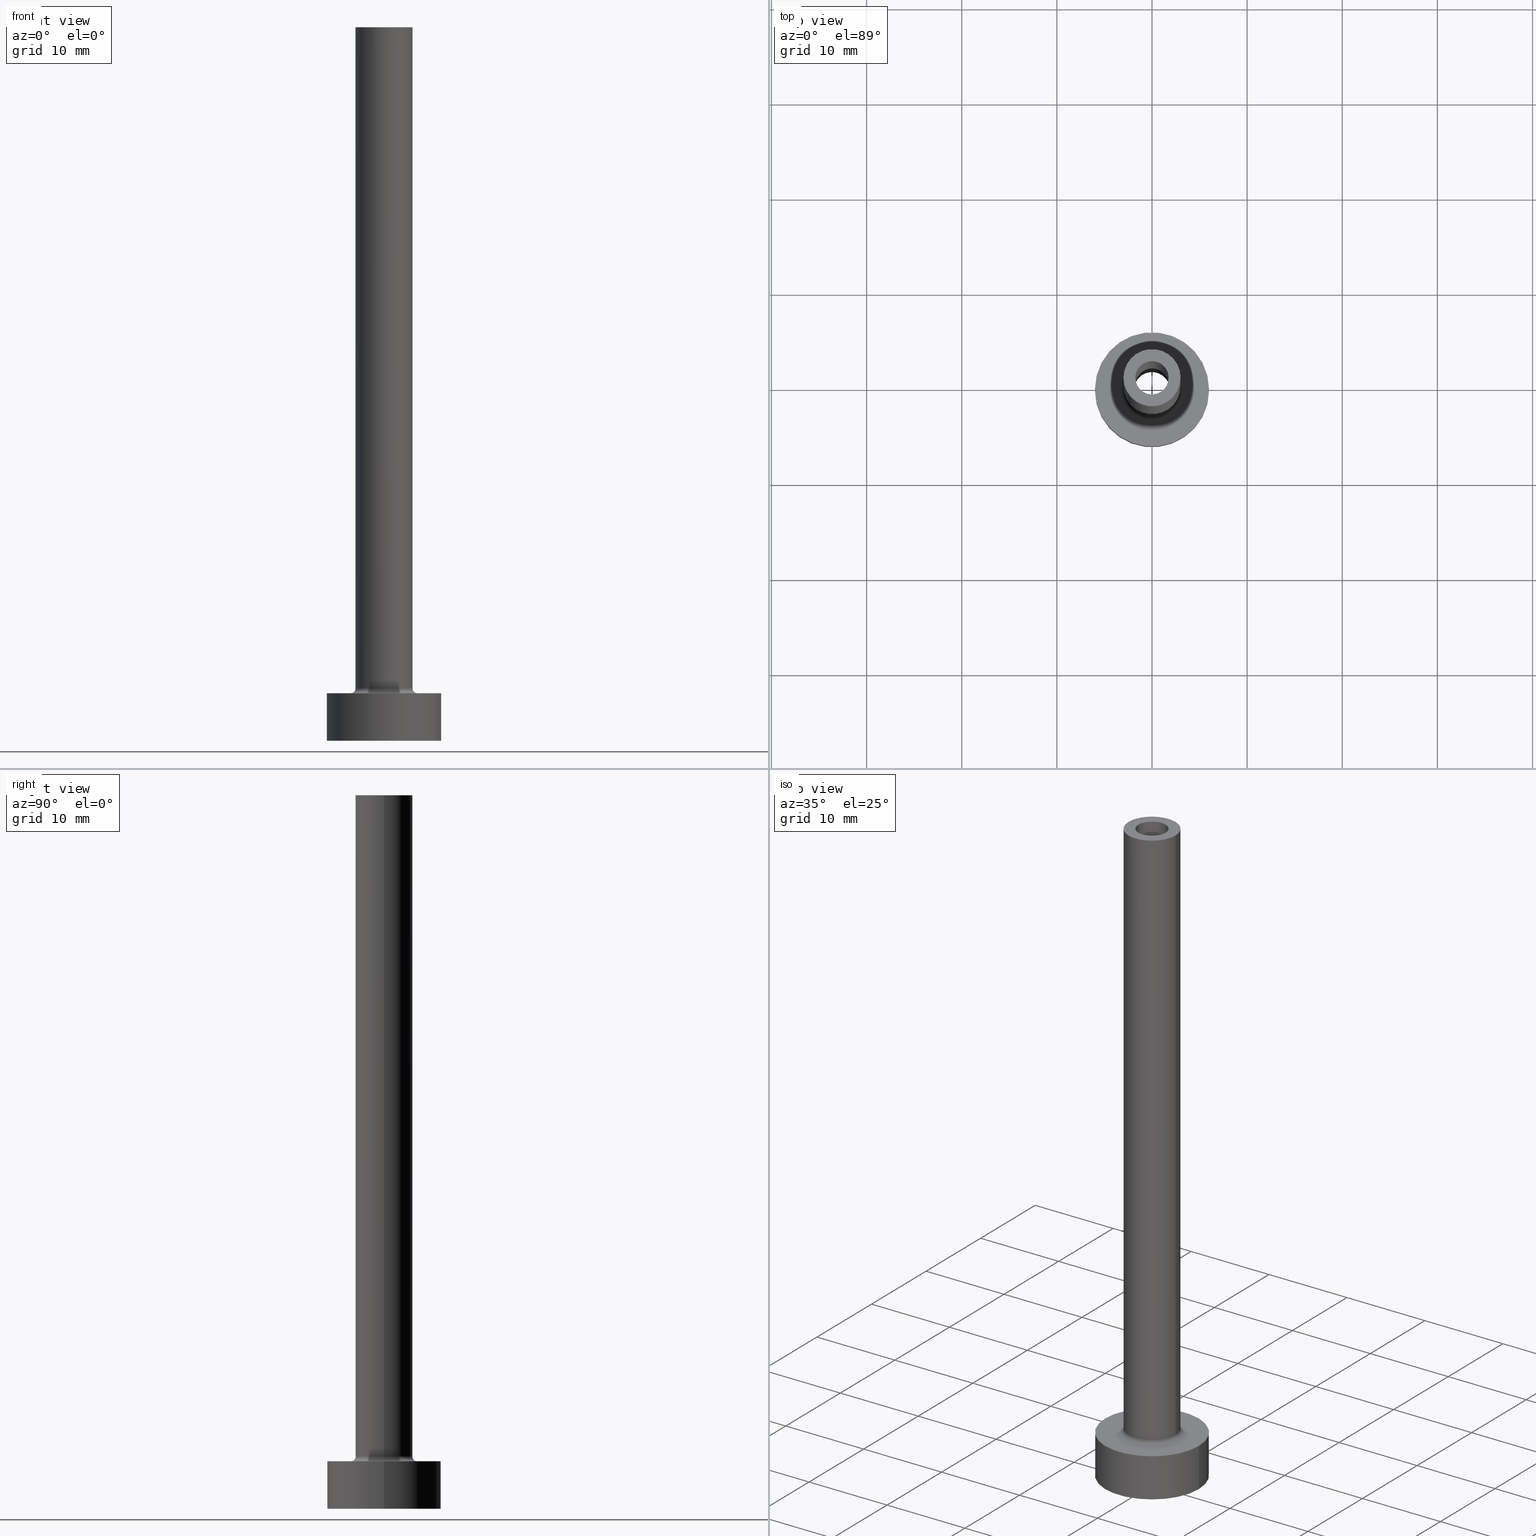
[diagram: canonical four-view strip — front | top / right | iso, engineering-drawing reading convention]
A machine part, canonical four-view strip (front | top / right | iso — engineering-drawing reading convention). The complete STEP part file that produces these views, byte-faithful:
ISO-10303-21;
HEADER;
FILE_DESCRIPTION (( 'STEP AP203' ),
    '1' );
FILE_NAME ('6c5e.STEP',
    '2023-02-13T17:52:37',
    ( '' ),
    ( '' ),
    'SwSTEP 2.0',
    'SolidWorks 2019',
    '' );
FILE_SCHEMA (( 'CONFIG_CONTROL_DESIGN' ));
ENDSEC;

DATA;
#1 = ADVANCED_FACE ( 'NONE', ( #37 ), #139, .F. ) ;
#2 = SECURITY_CLASSIFICATION ( '', '', #143 ) ;
#3 = LOCAL_TIME ( 18, 52, 37.00000000000000000, #80 ) ;
#4 = ORIENTED_EDGE ( 'NONE', *, *, #181, .F. ) ;
#5 = ORIENTED_EDGE ( 'NONE', *, *, #169, .F. ) ;
#6 = PRODUCT_DEFINITION_SHAPE ( 'NONE', 'NONE',  #79 ) ;
#7 = APPROVAL_ROLE ( '' ) ;
#8 = VECTOR ( 'NONE', #162, 1000.000000000000000 ) ;
#9 = PLANE ( 'NONE',  #408 ) ;
#10 = CIRCLE ( 'NONE', #326, 1.899999999999999911 ) ;
#11 = ORIENTED_EDGE ( 'NONE', *, *, #351, .T. ) ;
#12 = CC_DESIGN_PERSON_AND_ORGANIZATION_ASSIGNMENT ( #315, #214, ( #79 ) ) ;
#13 = LINE ( 'NONE', #39, #208 ) ;
#14 = VERTEX_POINT ( 'NONE', #420 ) ;
#15 = FACE_OUTER_BOUND ( 'NONE', #152, .T. ) ;
#16 = DIRECTION ( 'NONE',  ( -0.000000000000000000, -0.000000000000000000, -1.000000000000000000 ) ) ;
#17 = ADVANCED_FACE ( 'NONE', ( #424 ), #142, .F. ) ;
#18 = CC_DESIGN_APPROVAL ( #457, ( #79 ) ) ;
#19 = ORIENTED_EDGE ( 'NONE', *, *, #309, .T. ) ;
#20 = DATE_AND_TIME ( #47, #3 ) ;
#21 = FACE_OUTER_BOUND ( 'NONE', #421, .T. ) ;
#22 = CYLINDRICAL_SURFACE ( 'NONE', #172, 6.000000000000000888 ) ;
#23 = DIRECTION ( 'NONE',  ( 1.000000000000000000, 0.000000000000000000, -0.000000000000000000 ) ) ;
#24 = CIRCLE ( 'NONE', #383, 3.000000000000000444 ) ;
#25 = CIRCLE ( 'NONE', #284, 6.000000000000000888 ) ;
#26 = ORIENTED_EDGE ( 'NONE', *, *, #144, .T. ) ;
#27 = DIRECTION ( 'NONE',  ( 1.000000000000000000, 0.000000000000000000, 0.000000000000000000 ) ) ;
#28 = AXIS2_PLACEMENT_3D ( 'NONE', #170, #96, #174 ) ;
#29 = CARTESIAN_POINT ( 'NONE',  ( -1.899999999999999911, 0.000000000000000000, 30.00000000000001421 ) ) ;
#30 = CARTESIAN_POINT ( 'NONE',  ( 0.000000000000000000, 0.000000000000000000, 5.000000000000000000 ) ) ;
#31 = ORIENTED_EDGE ( 'NONE', *, *, #425, .F. ) ;
#32 = AXIS2_PLACEMENT_3D ( 'NONE', #294, #363, #332 ) ;
#33 = EDGE_CURVE ( 'NONE', #136, #259, #25, .T. ) ;
#34 = CIRCLE ( 'NONE', #293, 3.000000000000000444 ) ;
#35 = AXIS2_PLACEMENT_3D ( 'NONE', #390, #382, #379 ) ;
#36 = DIRECTION ( 'NONE',  ( 0.000000000000000000, 0.000000000000000000, -1.000000000000000000 ) ) ;
#37 = FACE_OUTER_BOUND ( 'NONE', #217, .T. ) ;
#38 = CALENDAR_DATE ( 2023, 13, 2 ) ;
#39 = CARTESIAN_POINT ( 'NONE',  ( -6.000000000000000888, 0.000000000000000000, 5.000000000000000000 ) ) ;
#40 = EDGE_CURVE ( 'NONE', #222, #290, #380, .T. ) ;
#41 = DATE_AND_TIME ( #429, #233 ) ;
#42 = ORIENTED_EDGE ( 'NONE', *, *, #173, .F. ) ;
#43 = CIRCLE ( 'NONE', #77, 1.899999999999999911 ) ;
#44 = CIRCLE ( 'NONE', #403, 3.000000000000000444 ) ;
#45 = COORDINATED_UNIVERSAL_TIME_OFFSET ( 1, 0, .AHEAD. ) ;
#46 = ORIENTED_EDGE ( 'NONE', *, *, #313, .T. ) ;
#47 = CALENDAR_DATE ( 2023, 13, 2 ) ;
#48 = CARTESIAN_POINT ( 'NONE',  ( 0.000000000000000000, 0.000000000000000000, 30.00000000000001421 ) ) ;
#49 = DIRECTION ( 'NONE',  ( -1.000000000000000000, 0.000000000000000000, 0.000000000000000000 ) ) ;
#50 = DIRECTION ( 'NONE',  ( -0.000000000000000000, -0.000000000000000000, -1.000000000000000000 ) ) ;
#51 = ORIENTED_EDGE ( 'NONE', *, *, #94, .F. ) ;
#52 = EDGE_CURVE ( 'NONE', #290, #273, #339, .T. ) ;
#53 = CYLINDRICAL_SURFACE ( 'NONE', #279, 1.750000000000000000 ) ;
#54 = DIRECTION ( 'NONE',  ( 0.000000000000000000, 0.000000000000000000, -1.000000000000000000 ) ) ;
#55 = CIRCLE ( 'NONE', #449, 1.750000000000000000 ) ;
#56 =( GEOMETRIC_REPRESENTATION_CONTEXT ( 3 ) GLOBAL_UNCERTAINTY_ASSIGNED_CONTEXT ( ( #378 ) ) GLOBAL_UNIT_ASSIGNED_CONTEXT ( ( #178, #104, #176 ) ) REPRESENTATION_CONTEXT ( 'NONE', 'WORKASPACE' ) );
#57 = DIRECTION ( 'NONE',  ( 0.000000000000000000, 0.000000000000000000, 1.000000000000000000 ) ) ;
#58 = SHAPE_DEFINITION_REPRESENTATION ( #6, #241 ) ;
#59 = CARTESIAN_POINT ( 'NONE',  ( 3.000000000000000444, 3.673940397442060361E-16, 5.500000000000005329 ) ) ;
#60 = ADVANCED_FACE ( 'NONE', ( #324, #15 ), #9, .F. ) ;
#61 = DIRECTION ( 'NONE',  ( 1.000000000000000000, 0.000000000000000000, 0.000000000000000000 ) ) ;
#62 = AXIS2_PLACEMENT_3D ( 'NONE', #427, #81, #248 ) ;
#63 = APPROVAL_PERSON_ORGANIZATION ( #260, #457, #7 ) ;
#64 = CARTESIAN_POINT ( 'NONE',  ( 0.000000000000000000, 0.000000000000000000, 0.000000000000000000 ) ) ;
#65 = DIRECTION ( 'NONE',  ( -1.000000000000000000, 0.000000000000000000, 0.000000000000000000 ) ) ;
#66 = EDGE_CURVE ( 'NONE', #230, #136, #90, .T. ) ;
#67 = ORIENTED_EDGE ( 'NONE', *, *, #71, .T. ) ;
#68 = ORIENTED_EDGE ( 'NONE', *, *, #52, .F. ) ;
#69 = CARTESIAN_POINT ( 'NONE',  ( 0.000000000000000000, 0.000000000000000000, 5.500000000000005329 ) ) ;
#70 = AXIS2_PLACEMENT_3D ( 'NONE', #413, #91, #417 ) ;
#71 = EDGE_CURVE ( 'NONE', #222, #14, #24, .T. ) ;
#72 = CARTESIAN_POINT ( 'NONE',  ( 0.000000000000000000, 0.000000000000000000, 75.00000000000001421 ) ) ;
#73 = PERSON_AND_ORGANIZATION ( #180, #311 ) ;
#74 = DATE_AND_TIME ( #388, #262 ) ;
#75 = COORDINATED_UNIVERSAL_TIME_OFFSET ( 1, 0, .AHEAD. ) ;
#76 = PRODUCT ( '6c5e', '6c5e', '', ( #423 ) ) ;
#77 = AXIS2_PLACEMENT_3D ( 'NONE', #203, #304, #27 ) ;
#78 = ORIENTED_EDGE ( 'NONE', *, *, #302, .F. ) ;
#79 = PRODUCT_DEFINITION ( 'NEZN�M�', '', #209, #212 ) ;
#80 = COORDINATED_UNIVERSAL_TIME_OFFSET ( 1, 0, .AHEAD. ) ;
#81 = DIRECTION ( 'NONE',  ( -0.000000000000000000, -0.000000000000000000, -1.000000000000000000 ) ) ;
#82 = VERTEX_POINT ( 'NONE', #109 ) ;
#83 = DIRECTION ( 'NONE',  ( 0.000000000000000000, 0.000000000000000000, 1.000000000000000000 ) ) ;
#84 = ORIENTED_EDGE ( 'NONE', *, *, #236, .F. ) ;
#85 = VECTOR ( 'NONE', #384, 1000.000000000000000 ) ;
#86 = CYLINDRICAL_SURFACE ( 'NONE', #341, 6.000000000000000888 ) ;
#87 = ADVANCED_FACE ( 'NONE', ( #145 ), #391, .F. ) ;
#88 = TOROIDAL_SURFACE ( 'NONE', #343, 3.500000000000000444, 0.5000000000000000000 ) ;
#89 = ORIENTED_EDGE ( 'NONE', *, *, #285, .F. ) ;
#90 = LINE ( 'NONE', #190, #8 ) ;
#91 = DIRECTION ( 'NONE',  ( 0.000000000000000000, 0.000000000000000000, 1.000000000000000000 ) ) ;
#92 = DIRECTION ( 'NONE',  ( 0.000000000000000000, 0.000000000000000000, 1.000000000000000000 ) ) ;
#93 = CARTESIAN_POINT ( 'NONE',  ( 6.000000000000000888, 7.347880794884120722E-16, 5.000000000000000000 ) ) ;
#94 = EDGE_CURVE ( 'NONE', #147, #407, #283, .T. ) ;
#95 = ORIENTED_EDGE ( 'NONE', *, *, #138, .T. ) ;
#96 = DIRECTION ( 'NONE',  ( -0.000000000000000000, -0.000000000000000000, -1.000000000000000000 ) ) ;
#97 = DIRECTION ( 'NONE',  ( -1.000000000000000000, 0.000000000000000000, 0.000000000000000000 ) ) ;
#98 = CYLINDRICAL_SURFACE ( 'NONE', #333, 1.899999999999999911 ) ;
#99 = ORIENTED_EDGE ( 'NONE', *, *, #329, .F. ) ;
#100 = EDGE_CURVE ( 'NONE', #259, #136, #163, .T. ) ;
#101 = AXIS2_PLACEMENT_3D ( 'NONE', #269, #266, #274 ) ;
#102 = DIRECTION ( 'NONE',  ( 0.000000000000000000, 0.000000000000000000, 1.000000000000000000 ) ) ;
#103 = AXIS2_PLACEMENT_3D ( 'NONE', #215, #295, #257 ) ;
#104 =( NAMED_UNIT ( * ) PLANE_ANGLE_UNIT ( ) SI_UNIT ( $, .RADIAN. ) );
#105 = CLOSED_SHELL ( 'NONE', ( #114, #1, #336, #158, #192, #409, #205, #243, #275, #151, #87, #344, #60, #17 ) ) ;
#106 = ORIENTED_EDGE ( 'NONE', *, *, #52, .T. ) ;
#107 = PERSON_AND_ORGANIZATION ( #180, #311 ) ;
#108 = LINE ( 'NONE', #317, #165 ) ;
#109 = CARTESIAN_POINT ( 'NONE',  ( 3.500000000000000444, 0.000000000000000000, 5.000000000000002665 ) ) ;
#110 = APPROVAL_STATUS ( 'not_yet_approved' ) ;
#111 = ORIENTED_EDGE ( 'NONE', *, *, #360, .F. ) ;
#112 = EDGE_LOOP ( 'NONE', ( #46, #335 ) ) ;
#113 = ORIENTED_EDGE ( 'NONE', *, *, #33, .T. ) ;
#114 = ADVANCED_FACE ( 'NONE', ( #402 ), #53, .F. ) ;
#115 = CIRCLE ( 'NONE', #125, 1.899999999999999911 ) ;
#116 = APPROVAL_PERSON_ORGANIZATION ( #146, #369, #287 ) ;
#117 = ORIENTED_EDGE ( 'NONE', *, *, #442, .F. ) ;
#118 = CARTESIAN_POINT ( 'NONE',  ( 0.000000000000000000, 0.000000000000000000, 0.000000000000000000 ) ) ;
#119 = CARTESIAN_POINT ( 'NONE',  ( 1.899999999999999911, 2.326828918379971365E-16, 0.000000000000000000 ) ) ;
#120 = CC_DESIGN_PERSON_AND_ORGANIZATION_ASSIGNMENT ( #107, #389, ( #2 ) ) ;
#121 = EDGE_LOOP ( 'NONE', ( #51, #89 ) ) ;
#122 = VERTEX_POINT ( 'NONE', #194 ) ;
#123 = APPLICATION_PROTOCOL_DEFINITION ( 'international standard', 'config_control_design', 1994, #280 ) ;
#124 = DIRECTION ( 'NONE',  ( 0.000000000000000000, 0.000000000000000000, -1.000000000000000000 ) ) ;
#125 = AXIS2_PLACEMENT_3D ( 'NONE', #362, #83, #328 ) ;
#126 = CARTESIAN_POINT ( 'NONE',  ( 0.000000000000000000, 0.000000000000000000, 5.000000000000000000 ) ) ;
#127 = CYLINDRICAL_SURFACE ( 'NONE', #101, 3.000000000000000444 ) ;
#128 = DIRECTION ( 'NONE',  ( 1.000000000000000000, 0.000000000000000000, 0.000000000000000000 ) ) ;
#129 = ORIENTED_EDGE ( 'NONE', *, *, #198, .T. ) ;
#130 = AXIS2_PLACEMENT_3D ( 'NONE', #179, #240, #453 ) ;
#131 = DIRECTION ( 'NONE',  ( 1.000000000000000000, 0.000000000000000000, 0.000000000000000000 ) ) ;
#132 = LINE ( 'NONE', #199, #289 ) ;
#133 = ORIENTED_EDGE ( 'NONE', *, *, #435, .F. ) ;
#134 = DIRECTION ( 'NONE',  ( 1.000000000000000000, 0.000000000000000000, 0.000000000000000000 ) ) ;
#135 = DIRECTION ( 'NONE',  ( 0.000000000000000000, -1.000000000000000000, 0.000000000000000000 ) ) ;
#136 = VERTEX_POINT ( 'NONE', #434 ) ;
#137 = LINE ( 'NONE', #307, #255 ) ;
#138 = EDGE_CURVE ( 'NONE', #220, #189, #148, .T. ) ;
#139 = CYLINDRICAL_SURFACE ( 'NONE', #130, 1.899999999999999911 ) ;
#140 = CC_DESIGN_SECURITY_CLASSIFICATION ( #2, ( #209 ) ) ;
#141 = DIRECTION ( 'NONE',  ( 1.000000000000000000, 0.000000000000000000, 0.000000000000000000 ) ) ;
#142 = CYLINDRICAL_SURFACE ( 'NONE', #323, 1.750000000000000000 ) ;
#143 = SECURITY_CLASSIFICATION_LEVEL ( 'unclassified' ) ;
#144 = EDGE_CURVE ( 'NONE', #278, #259, #13, .T. ) ;
#145 = FACE_OUTER_BOUND ( 'NONE', #381, .T. ) ;
#146 = PERSON_AND_ORGANIZATION ( #180, #311 ) ;
#147 = VERTEX_POINT ( 'NONE', #350 ) ;
#148 = CIRCLE ( 'NONE', #270, 1.899999999999999911 ) ;
#149 = AXIS2_PLACEMENT_3D ( 'NONE', #267, #411, #235 ) ;
#150 = ORIENTED_EDGE ( 'NONE', *, *, #425, .T. ) ;
#151 = ADVANCED_FACE ( 'NONE', ( #440, #244 ), #387, .T. ) ;
#152 = EDGE_LOOP ( 'NONE', ( #204, #4 ) ) ;
#153 = AXIS2_PLACEMENT_3D ( 'NONE', #359, #330, #297 ) ;
#154 = APPLICATION_CONTEXT ( 'configuration controlled 3d designs of mechanical parts and assemblies' ) ;
#155 = CARTESIAN_POINT ( 'NONE',  ( 0.000000000000000000, 0.000000000000000000, 75.00000000000001421 ) ) ;
#156 = AXIS2_PLACEMENT_3D ( 'NONE', #30, #201, #365 ) ;
#157 = CC_DESIGN_APPROVAL ( #369, ( #209 ) ) ;
#158 = ADVANCED_FACE ( 'NONE', ( #314 ), #286, .T. ) ;
#159 = PERSON_AND_ORGANIZATION_ROLE ( 'design_owner' ) ;
#160 = FACE_OUTER_BOUND ( 'NONE', #183, .T. ) ;
#161 = ORIENTED_EDGE ( 'NONE', *, *, #435, .T. ) ;
#162 = DIRECTION ( 'NONE',  ( -0.000000000000000000, -0.000000000000000000, -1.000000000000000000 ) ) ;
#163 = CIRCLE ( 'NONE', #153, 6.000000000000000888 ) ;
#164 = DIRECTION ( 'NONE',  ( 1.000000000000000000, 0.000000000000000000, 0.000000000000000000 ) ) ;
#165 = VECTOR ( 'NONE', #36, 1000.000000000000000 ) ;
#166 = ORIENTED_EDGE ( 'NONE', *, *, #66, .T. ) ;
#167 = PLANE ( 'NONE',  #156 ) ;
#168 = CARTESIAN_POINT ( 'NONE',  ( 0.000000000000000000, 0.000000000000000000, 5.000000000000000000 ) ) ;
#169 = EDGE_CURVE ( 'NONE', #290, #292, #254, .T. ) ;
#170 = CARTESIAN_POINT ( 'NONE',  ( 0.000000000000000000, 0.000000000000000000, 5.000000000000000000 ) ) ;
#171 = DIRECTION ( 'NONE',  ( 0.000000000000000000, 0.000000000000000000, -1.000000000000000000 ) ) ;
#172 = AXIS2_PLACEMENT_3D ( 'NONE', #168, #415, #97 ) ;
#173 = EDGE_CURVE ( 'NONE', #122, #399, #55, .T. ) ;
#174 = DIRECTION ( 'NONE',  ( 1.000000000000000000, 0.000000000000000000, 0.000000000000000000 ) ) ;
#175 = DIRECTION ( 'NONE',  ( 0.000000000000000000, 0.000000000000000000, 1.000000000000000000 ) ) ;
#176 =( NAMED_UNIT ( * ) SI_UNIT ( $, .STERADIAN. ) SOLID_ANGLE_UNIT ( ) );
#177 = EDGE_LOOP ( 'NONE', ( #68, #353, #325, #438 ) ) ;
#178 =( LENGTH_UNIT ( ) NAMED_UNIT ( * ) SI_UNIT ( .MILLI., .METRE. ) );
#179 = CARTESIAN_POINT ( 'NONE',  ( 0.000000000000000000, 0.000000000000000000, 35.37401153701777190 ) ) ;
#180 = PERSON ( 'NEUR�EN�', 'NEUR�EN�', 'NEUR�EN�', ('NEUR�EN�'), ('NEUR�EN�'), ('NEUR�EN�') ) ;
#181 = EDGE_CURVE ( 'NONE', #358, #316, #115, .T. ) ;
#182 = DIRECTION ( 'NONE',  ( 1.000000000000000000, 0.000000000000000000, -0.000000000000000000 ) ) ;
#183 = EDGE_LOOP ( 'NONE', ( #117, #166, #113, #461 ) ) ;
#184 = CIRCLE ( 'NONE', #70, 1.750000000000000000 ) ;
#185 = CIRCLE ( 'NONE', #200, 3.500000000000000444 ) ;
#186 = CC_DESIGN_PERSON_AND_ORGANIZATION_ASSIGNMENT ( #355, #458, ( #209 ) ) ;
#187 = APPROVAL_STATUS ( 'not_yet_approved' ) ;
#188 = ORIENTED_EDGE ( 'NONE', *, *, #94, .T. ) ;
#189 = VERTEX_POINT ( 'NONE', #119 ) ;
#190 = CARTESIAN_POINT ( 'NONE',  ( 6.000000000000000888, 7.347880794884120722E-16, 5.000000000000000000 ) ) ;
#191 = DIRECTION ( 'NONE',  ( 0.000000000000000000, 0.000000000000000000, 1.000000000000000000 ) ) ;
#192 = ADVANCED_FACE ( 'NONE', ( #160 ), #86, .T. ) ;
#193 = DIRECTION ( 'NONE',  ( -1.000000000000000000, 0.000000000000000000, 0.000000000000000000 ) ) ;
#194 = CARTESIAN_POINT ( 'NONE',  ( 1.750000000000000000, 2.143131898507867804E-16, 30.00000000000001421 ) ) ;
#195 = ORIENTED_EDGE ( 'NONE', *, *, #66, .F. ) ;
#196 = ORIENTED_EDGE ( 'NONE', *, *, #100, .F. ) ;
#197 = FACE_BOUND ( 'NONE', #412, .T. ) ;
#198 = EDGE_CURVE ( 'NONE', #14, #222, #34, .T. ) ;
#199 = CARTESIAN_POINT ( 'NONE',  ( 1.750000000000000000, 2.143131898507867804E-16, 75.00000000000001421 ) ) ;
#200 = AXIS2_PLACEMENT_3D ( 'NONE', #126, #452, #265 ) ;
#201 = DIRECTION ( 'NONE',  ( 0.000000000000000000, 0.000000000000000000, 1.000000000000000000 ) ) ;
#202 = ORIENTED_EDGE ( 'NONE', *, *, #442, .T. ) ;
#203 = CARTESIAN_POINT ( 'NONE',  ( 0.000000000000000000, 0.000000000000000000, 30.00000000000001421 ) ) ;
#204 = ORIENTED_EDGE ( 'NONE', *, *, #309, .F. ) ;
#205 = ADVANCED_FACE ( 'NONE', ( #210, #21 ), #167, .T. ) ;
#206 = ORIENTED_EDGE ( 'NONE', *, *, #236, .T. ) ;
#207 = CARTESIAN_POINT ( 'NONE',  ( -3.000000000000000444, 0.000000000000000000, 75.00000000000001421 ) ) ;
#208 = VECTOR ( 'NONE', #298, 1000.000000000000000 ) ;
#209 = PRODUCT_DEFINITION_FORMATION_WITH_SPECIFIED_SOURCE ( 'LIBOVOLN�', '', #76, .NOT_KNOWN. ) ;
#210 = FACE_BOUND ( 'NONE', #112, .T. ) ;
#211 = FACE_OUTER_BOUND ( 'NONE', #177, .T. ) ;
#212 = DESIGN_CONTEXT ( 'detailed design', #280, 'design' ) ;
#213 = DIRECTION ( 'NONE',  ( 1.000000000000000000, 0.000000000000000000, 0.000000000000000000 ) ) ;
#214 = PERSON_AND_ORGANIZATION_ROLE ( 'creator' ) ;
#215 = CARTESIAN_POINT ( 'NONE',  ( 0.000000000000000000, 0.000000000000000000, 5.500000000000005329 ) ) ;
#216 = DATE_TIME_ROLE ( 'classification_date' ) ;
#217 = EDGE_LOOP ( 'NONE', ( #19, #256, #206, #133 ) ) ;
#218 = DATE_TIME_ROLE ( 'creation_date' ) ;
#219 = DIRECTION ( 'NONE',  ( 1.224646799147353207E-16, 1.000000000000000000, -0.000000000000000000 ) ) ;
#220 = VERTEX_POINT ( 'NONE', #376 ) ;
#221 = CC_DESIGN_DATE_AND_TIME_ASSIGNMENT ( #460, #218, ( #79 ) ) ;
#222 = VERTEX_POINT ( 'NONE', #207 ) ;
#223 = PERSON_AND_ORGANIZATION ( #180, #311 ) ;
#224 = CARTESIAN_POINT ( 'NONE',  ( 0.000000000000000000, 0.000000000000000000, 5.000000000000000000 ) ) ;
#225 = LOCAL_TIME ( 18, 52, 37.00000000000000000, #396 ) ;
#226 = EDGE_LOOP ( 'NONE', ( #67, #129 ) ) ;
#227 = DIRECTION ( 'NONE',  ( 1.000000000000000000, 0.000000000000000000, 0.000000000000000000 ) ) ;
#228 = DIRECTION ( 'NONE',  ( 0.000000000000000000, 0.000000000000000000, 1.000000000000000000 ) ) ;
#229 = CARTESIAN_POINT ( 'NONE',  ( 0.000000000000000000, 0.000000000000000000, 5.500000000000005329 ) ) ;
#230 = VERTEX_POINT ( 'NONE', #93 ) ;
#231 = CARTESIAN_POINT ( 'NONE',  ( -3.000000000000000444, 0.000000000000000000, 5.500000000000005329 ) ) ;
#232 = AXIS2_PLACEMENT_3D ( 'NONE', #398, #219, #356 ) ;
#233 = LOCAL_TIME ( 18, 52, 37.00000000000000000, #75 ) ;
#234 = CARTESIAN_POINT ( 'NONE',  ( -3.500000000000000444, 4.286263797015737088E-16, 5.000000000000002665 ) ) ;
#235 = DIRECTION ( 'NONE',  ( 1.000000000000000000, 0.000000000000000000, 0.000000000000000000 ) ) ;
#236 = EDGE_CURVE ( 'NONE', #189, #220, #10, .T. ) ;
#237 = ORIENTED_EDGE ( 'NONE', *, *, #385, .T. ) ;
#238 = DIRECTION ( 'NONE',  ( 1.000000000000000000, 0.000000000000000000, 0.000000000000000000 ) ) ;
#239 = VECTOR ( 'NONE', #372, 1000.000000000000000 ) ;
#240 = DIRECTION ( 'NONE',  ( 0.000000000000000000, 0.000000000000000000, -1.000000000000000000 ) ) ;
#241 = ADVANCED_BREP_SHAPE_REPRESENTATION ( '6c5e', ( #303, #428 ), #56 ) ;
#242 = DIRECTION ( 'NONE',  ( -1.000000000000000000, 0.000000000000000000, 0.000000000000000000 ) ) ;
#243 = ADVANCED_FACE ( 'NONE', ( #197, #340 ), #451, .F. ) ;
#244 = FACE_OUTER_BOUND ( 'NONE', #226, .T. ) ;
#245 = COORDINATED_UNIVERSAL_TIME_OFFSET ( 1, 0, .AHEAD. ) ;
#246 = CIRCLE ( 'NONE', #305, 1.750000000000000000 ) ;
#247 = EDGE_CURVE ( 'NONE', #399, #122, #246, .T. ) ;
#248 = DIRECTION ( 'NONE',  ( -1.000000000000000000, 0.000000000000000000, 0.000000000000000000 ) ) ;
#249 = APPROVAL_DATE_TIME ( #312, #369 ) ;
#250 = PERSON_AND_ORGANIZATION ( #180, #311 ) ;
#251 = ORIENTED_EDGE ( 'NONE', *, *, #100, .T. ) ;
#252 = APPROVAL_DATE_TIME ( #20, #457 ) ;
#253 = ORIENTED_EDGE ( 'NONE', *, *, #247, .T. ) ;
#254 = CIRCLE ( 'NONE', #232, 0.4999999999999995559 ) ;
#255 = VECTOR ( 'NONE', #441, 1000.000000000000000 ) ;
#256 = ORIENTED_EDGE ( 'NONE', *, *, #360, .T. ) ;
#257 = DIRECTION ( 'NONE',  ( 1.000000000000000000, 0.000000000000000000, 0.000000000000000000 ) ) ;
#258 = DIRECTION ( 'NONE',  ( 0.000000000000000000, 0.000000000000000000, 1.000000000000000000 ) ) ;
#259 = VERTEX_POINT ( 'NONE', #405 ) ;
#260 = PERSON_AND_ORGANIZATION ( #180, #311 ) ;
#261 = CARTESIAN_POINT ( 'NONE',  ( 0.000000000000000000, 0.000000000000000000, 30.00000000000001421 ) ) ;
#262 = LOCAL_TIME ( 18, 52, 37.00000000000000000, #245 ) ;
#263 = CC_DESIGN_PERSON_AND_ORGANIZATION_ASSIGNMENT ( #223, #159, ( #76 ) ) ;
#264 = CARTESIAN_POINT ( 'NONE',  ( 0.000000000000000000, 0.000000000000000000, 75.00000000000001421 ) ) ;
#265 = DIRECTION ( 'NONE',  ( 1.000000000000000000, 0.000000000000000000, 0.000000000000000000 ) ) ;
#266 = DIRECTION ( 'NONE',  ( -0.000000000000000000, -0.000000000000000000, -1.000000000000000000 ) ) ;
#267 = CARTESIAN_POINT ( 'NONE',  ( 0.000000000000000000, 0.000000000000000000, 5.000000000000000000 ) ) ;
#268 = EDGE_LOOP ( 'NONE', ( #78, #422, #296, #106 ) ) ;
#269 = CARTESIAN_POINT ( 'NONE',  ( 0.000000000000000000, 0.000000000000000000, 75.00000000000001421 ) ) ;
#270 = AXIS2_PLACEMENT_3D ( 'NONE', #118, #16, #164 ) ;
#271 = DIRECTION ( 'NONE',  ( 0.000000000000000000, 0.000000000000000000, -1.000000000000000000 ) ) ;
#272 = CIRCLE ( 'NONE', #149, 6.000000000000000888 ) ;
#273 = VERTEX_POINT ( 'NONE', #59 ) ;
#274 = DIRECTION ( 'NONE',  ( -1.000000000000000000, 0.000000000000000000, 0.000000000000000000 ) ) ;
#275 = ADVANCED_FACE ( 'NONE', ( #444 ), #127, .T. ) ;
#276 = DIRECTION ( 'NONE',  ( 0.000000000000000000, 0.000000000000000000, 1.000000000000000000 ) ) ;
#277 = CARTESIAN_POINT ( 'NONE',  ( 0.000000000000000000, 0.000000000000000000, 0.000000000000000000 ) ) ;
#278 = VERTEX_POINT ( 'NONE', #410 ) ;
#279 = AXIS2_PLACEMENT_3D ( 'NONE', #437, #124, #49 ) ;
#280 = APPLICATION_CONTEXT ( 'configuration controlled 3d designs of mechanical parts and assemblies' ) ;
#281 = APPROVAL_PERSON_ORGANIZATION ( #73, #375, #352 ) ;
#282 = ORIENTED_EDGE ( 'NONE', *, *, #33, .F. ) ;
#283 = CIRCLE ( 'NONE', #32, 1.750000000000000000 ) ;
#284 = AXIS2_PLACEMENT_3D ( 'NONE', #277, #306, #61 ) ;
#285 = EDGE_CURVE ( 'NONE', #407, #147, #184, .T. ) ;
#286 = CYLINDRICAL_SURFACE ( 'NONE', #62, 3.000000000000000444 ) ;
#287 = APPROVAL_ROLE ( '' ) ;
#288 = EDGE_LOOP ( 'NONE', ( #188, #237, #320, #331 ) ) ;
#289 = VECTOR ( 'NONE', #271, 1000.000000000000000 ) ;
#290 = VERTEX_POINT ( 'NONE', #231 ) ;
#291 = ORIENTED_EDGE ( 'NONE', *, *, #198, .F. ) ;
#292 = VERTEX_POINT ( 'NONE', #234 ) ;
#293 = AXIS2_PLACEMENT_3D ( 'NONE', #264, #228, #238 ) ;
#294 = CARTESIAN_POINT ( 'NONE',  ( 0.000000000000000000, 0.000000000000000000, 75.00000000000001421 ) ) ;
#295 = DIRECTION ( 'NONE',  ( 0.000000000000000000, 0.000000000000000000, 1.000000000000000000 ) ) ;
#296 = ORIENTED_EDGE ( 'NONE', *, *, #40, .T. ) ;
#297 = DIRECTION ( 'NONE',  ( 1.000000000000000000, 0.000000000000000000, 0.000000000000000000 ) ) ;
#298 = DIRECTION ( 'NONE',  ( -0.000000000000000000, -0.000000000000000000, -1.000000000000000000 ) ) ;
#299 = CIRCLE ( 'NONE', #35, 6.000000000000000888 ) ;
#300 = CARTESIAN_POINT ( 'NONE',  ( 0.000000000000000000, 0.000000000000000000, 30.00000000000001421 ) ) ;
#301 = CARTESIAN_POINT ( 'NONE',  ( 1.899999999999999911, 2.326828918379971365E-16, 35.37401153701777190 ) ) ;
#302 = EDGE_CURVE ( 'NONE', #14, #273, #374, .T. ) ;
#303 = MANIFOLD_SOLID_BREP ( 'Odebrat vysunut�m4', #105 ) ;
#304 = DIRECTION ( 'NONE',  ( 0.000000000000000000, 0.000000000000000000, 1.000000000000000000 ) ) ;
#305 = AXIS2_PLACEMENT_3D ( 'NONE', #300, #57, #134 ) ;
#306 = DIRECTION ( 'NONE',  ( 0.000000000000000000, 0.000000000000000000, 1.000000000000000000 ) ) ;
#307 = CARTESIAN_POINT ( 'NONE',  ( -1.750000000000000000, 0.000000000000000000, 75.00000000000001421 ) ) ;
#308 = APPLICATION_PROTOCOL_DEFINITION ( 'international standard', 'config_control_design', 1994, #154 ) ;
#309 = EDGE_CURVE ( 'NONE', #316, #358, #43, .T. ) ;
#310 = CARTESIAN_POINT ( 'NONE',  ( -3.000000000000000444, 0.000000000000000000, 75.00000000000001421 ) ) ;
#311 = ORGANIZATION ( 'NEUR�EN�', 'NEUR�EN�', '' ) ;
#312 = DATE_AND_TIME ( #38, #368 ) ;
#313 = EDGE_CURVE ( 'NONE', #82, #292, #347, .T. ) ;
#314 = FACE_OUTER_BOUND ( 'NONE', #371, .T. ) ;
#315 = PERSON_AND_ORGANIZATION ( #180, #311 ) ;
#316 = VERTEX_POINT ( 'NONE', #29 ) ;
#317 = CARTESIAN_POINT ( 'NONE',  ( -1.899999999999999911, 0.000000000000000000, 35.37401153701777190 ) ) ;
#318 = CC_DESIGN_APPROVAL ( #375, ( #2 ) ) ;
#319 = EDGE_LOOP ( 'NONE', ( #111, #393, #161, #95 ) ) ;
#320 = ORIENTED_EDGE ( 'NONE', *, *, #247, .F. ) ;
#321 = APPROVAL_STATUS ( 'not_yet_approved' ) ;
#322 = EDGE_CURVE ( 'NONE', #147, #399, #137, .T. ) ;
#323 = AXIS2_PLACEMENT_3D ( 'NONE', #426, #171, #242 ) ;
#324 = FACE_BOUND ( 'NONE', #433, .T. ) ;
#325 = ORIENTED_EDGE ( 'NONE', *, *, #313, .F. ) ;
#326 = AXIS2_PLACEMENT_3D ( 'NONE', #64, #446, #131 ) ;
#327 = VECTOR ( 'NONE', #54, 1000.000000000000000 ) ;
#328 = DIRECTION ( 'NONE',  ( 1.000000000000000000, 0.000000000000000000, 0.000000000000000000 ) ) ;
#329 = EDGE_CURVE ( 'NONE', #292, #82, #185, .T. ) ;
#330 = DIRECTION ( 'NONE',  ( 0.000000000000000000, 0.000000000000000000, 1.000000000000000000 ) ) ;
#331 = ORIENTED_EDGE ( 'NONE', *, *, #322, .F. ) ;
#332 = DIRECTION ( 'NONE',  ( 1.000000000000000000, 0.000000000000000000, 0.000000000000000000 ) ) ;
#333 = AXIS2_PLACEMENT_3D ( 'NONE', #406, #377, #65 ) ;
#334 = FACE_OUTER_BOUND ( 'NONE', #454, .T. ) ;
#335 = ORIENTED_EDGE ( 'NONE', *, *, #329, .T. ) ;
#336 = ADVANCED_FACE ( 'NONE', ( #211 ), #88, .F. ) ;
#337 = ORIENTED_EDGE ( 'NONE', *, *, #431, .F. ) ;
#338 = CARTESIAN_POINT ( 'NONE',  ( 0.000000000000000000, 0.000000000000000000, 0.000000000000000000 ) ) ;
#339 = CIRCLE ( 'NONE', #395, 3.000000000000000444 ) ;
#340 = FACE_OUTER_BOUND ( 'NONE', #397, .T. ) ;
#341 = AXIS2_PLACEMENT_3D ( 'NONE', #224, #50, #193 ) ;
#342 = CARTESIAN_POINT ( 'NONE',  ( -1.750000000000000000, 0.000000000000000000, 30.00000000000001421 ) ) ;
#343 = AXIS2_PLACEMENT_3D ( 'NONE', #229, #276, #128 ) ;
#344 = ADVANCED_FACE ( 'NONE', ( #370 ), #98, .F. ) ;
#345 = CARTESIAN_POINT ( 'NONE',  ( 1.899999999999999911, 2.326828918379971365E-16, 30.00000000000001421 ) ) ;
#346 = DIRECTION ( 'NONE',  ( 0.000000000000000000, 0.000000000000000000, 1.000000000000000000 ) ) ;
#347 = CIRCLE ( 'NONE', #28, 3.500000000000000444 ) ;
#348 = CALENDAR_DATE ( 2023, 13, 2 ) ;
#349 = ORIENTED_EDGE ( 'NONE', *, *, #385, .F. ) ;
#350 = CARTESIAN_POINT ( 'NONE',  ( -1.750000000000000000, 0.000000000000000000, 75.00000000000001421 ) ) ;
#351 = EDGE_CURVE ( 'NONE', #273, #82, #414, .T. ) ;
#352 = APPROVAL_ROLE ( '' ) ;
#353 = ORIENTED_EDGE ( 'NONE', *, *, #169, .T. ) ;
#354 = EDGE_LOOP ( 'NONE', ( #349, #416, #401, #42 ) ) ;
#355 = PERSON_AND_ORGANIZATION ( #180, #311 ) ;
#356 = DIRECTION ( 'NONE',  ( -1.000000000000000000, 1.224646799147354440E-16, 0.000000000000000000 ) ) ;
#357 = APPROVAL_DATE_TIME ( #41, #375 ) ;
#358 = VERTEX_POINT ( 'NONE', #345 ) ;
#359 = CARTESIAN_POINT ( 'NONE',  ( 0.000000000000000000, 0.000000000000000000, 0.000000000000000000 ) ) ;
#360 = EDGE_CURVE ( 'NONE', #358, #189, #447, .T. ) ;
#361 = ORIENTED_EDGE ( 'NONE', *, *, #302, .T. ) ;
#362 = CARTESIAN_POINT ( 'NONE',  ( 0.000000000000000000, 0.000000000000000000, 30.00000000000001421 ) ) ;
#363 = DIRECTION ( 'NONE',  ( 0.000000000000000000, 0.000000000000000000, 1.000000000000000000 ) ) ;
#364 = ORIENTED_EDGE ( 'NONE', *, *, #40, .F. ) ;
#365 = DIRECTION ( 'NONE',  ( 1.000000000000000000, 0.000000000000000000, -0.000000000000000000 ) ) ;
#366 = CARTESIAN_POINT ( 'NONE',  ( 3.500000000000000444, 0.000000000000000000, 5.500000000000005329 ) ) ;
#367 = CARTESIAN_POINT ( 'NONE',  ( 3.000000000000000444, 3.673940397442060361E-16, 75.00000000000001421 ) ) ;
#368 = LOCAL_TIME ( 18, 52, 37.00000000000000000, #45 ) ;
#369 = APPROVAL ( #110, 'NEUR�EN�' ) ;
#370 = FACE_OUTER_BOUND ( 'NONE', #319, .T. ) ;
#371 = EDGE_LOOP ( 'NONE', ( #291, #361, #448, #364 ) ) ;
#372 = DIRECTION ( 'NONE',  ( -0.000000000000000000, -0.000000000000000000, -1.000000000000000000 ) ) ;
#373 = CARTESIAN_POINT ( 'NONE',  ( 0.000000000000000000, 0.000000000000000000, 5.500000000000005329 ) ) ;
#374 = LINE ( 'NONE', #367, #239 ) ;
#375 = APPROVAL ( #187, 'NEUR�EN�' ) ;
#376 = CARTESIAN_POINT ( 'NONE',  ( -1.899999999999999911, 0.000000000000000000, 0.000000000000000000 ) ) ;
#377 = DIRECTION ( 'NONE',  ( 0.000000000000000000, 0.000000000000000000, -1.000000000000000000 ) ) ;
#378 = UNCERTAINTY_MEASURE_WITH_UNIT (LENGTH_MEASURE( 1.000000000000000082E-05 ), #178, 'distance_accuracy_value', 'NONE');
#379 = DIRECTION ( 'NONE',  ( 1.000000000000000000, 0.000000000000000000, 0.000000000000000000 ) ) ;
#380 = LINE ( 'NONE', #310, #85 ) ;
#381 = EDGE_LOOP ( 'NONE', ( #5, #337, #11, #99 ) ) ;
#382 = DIRECTION ( 'NONE',  ( 0.000000000000000000, 0.000000000000000000, 1.000000000000000000 ) ) ;
#383 = AXIS2_PLACEMENT_3D ( 'NONE', #155, #459, #227 ) ;
#384 = DIRECTION ( 'NONE',  ( -0.000000000000000000, -0.000000000000000000, -1.000000000000000000 ) ) ;
#385 = EDGE_CURVE ( 'NONE', #407, #122, #132, .T. ) ;
#386 = AXIS2_PLACEMENT_3D ( 'NONE', #338, #175, #23 ) ;
#387 = PLANE ( 'NONE',  #455 ) ;
#388 = CALENDAR_DATE ( 2023, 13, 2 ) ;
#389 = PERSON_AND_ORGANIZATION_ROLE ( 'classification_officer' ) ;
#390 = CARTESIAN_POINT ( 'NONE',  ( 0.000000000000000000, 0.000000000000000000, 5.000000000000000000 ) ) ;
#391 = TOROIDAL_SURFACE ( 'NONE', #103, 3.500000000000000444, 0.5000000000000000000 ) ;
#392 = PERSON_AND_ORGANIZATION_ROLE ( 'creator' ) ;
#393 = ORIENTED_EDGE ( 'NONE', *, *, #181, .T. ) ;
#394 = PRODUCT_RELATED_PRODUCT_CATEGORY ( 'detail', '', ( #76 ) ) ;
#395 = AXIS2_PLACEMENT_3D ( 'NONE', #69, #346, #213 ) ;
#396 = COORDINATED_UNIVERSAL_TIME_OFFSET ( 1, 0, .AHEAD. ) ;
#397 = EDGE_LOOP ( 'NONE', ( #196, #282 ) ) ;
#398 = CARTESIAN_POINT ( 'NONE',  ( -3.500000000000000444, 4.286263797015737088E-16, 5.500000000000005329 ) ) ;
#399 = VERTEX_POINT ( 'NONE', #342 ) ;
#400 = DIRECTION ( 'NONE',  ( 1.000000000000000000, 0.000000000000000000, 0.000000000000000000 ) ) ;
#401 = ORIENTED_EDGE ( 'NONE', *, *, #322, .T. ) ;
#402 = FACE_OUTER_BOUND ( 'NONE', #288, .T. ) ;
#403 = AXIS2_PLACEMENT_3D ( 'NONE', #373, #92, #430 ) ;
#404 = DIRECTION ( 'NONE',  ( 1.000000000000000000, 0.000000000000000000, -0.000000000000000000 ) ) ;
#405 = CARTESIAN_POINT ( 'NONE',  ( -6.000000000000000888, 0.000000000000000000, 0.000000000000000000 ) ) ;
#406 = CARTESIAN_POINT ( 'NONE',  ( 0.000000000000000000, 0.000000000000000000, 35.37401153701777190 ) ) ;
#407 = VERTEX_POINT ( 'NONE', #445 ) ;
#408 = AXIS2_PLACEMENT_3D ( 'NONE', #261, #258, #404 ) ;
#409 = ADVANCED_FACE ( 'NONE', ( #334 ), #22, .T. ) ;
#410 = CARTESIAN_POINT ( 'NONE',  ( -6.000000000000000888, 0.000000000000000000, 5.000000000000000000 ) ) ;
#411 = DIRECTION ( 'NONE',  ( 0.000000000000000000, 0.000000000000000000, 1.000000000000000000 ) ) ;
#412 = EDGE_LOOP ( 'NONE', ( #432, #84 ) ) ;
#413 = CARTESIAN_POINT ( 'NONE',  ( 0.000000000000000000, 0.000000000000000000, 75.00000000000001421 ) ) ;
#414 = CIRCLE ( 'NONE', #439, 0.5000000000000004441 ) ;
#415 = DIRECTION ( 'NONE',  ( -0.000000000000000000, -0.000000000000000000, -1.000000000000000000 ) ) ;
#416 = ORIENTED_EDGE ( 'NONE', *, *, #285, .T. ) ;
#417 = DIRECTION ( 'NONE',  ( 1.000000000000000000, 0.000000000000000000, 0.000000000000000000 ) ) ;
#418 = DIRECTION ( 'NONE',  ( 0.000000000000000000, 0.000000000000000000, -1.000000000000000000 ) ) ;
#419 = CC_DESIGN_DATE_AND_TIME_ASSIGNMENT ( #74, #216, ( #2 ) ) ;
#420 = CARTESIAN_POINT ( 'NONE',  ( 3.000000000000000444, 3.673940397442060361E-16, 75.00000000000001421 ) ) ;
#421 = EDGE_LOOP ( 'NONE', ( #150, #202 ) ) ;
#422 = ORIENTED_EDGE ( 'NONE', *, *, #71, .F. ) ;
#423 = MECHANICAL_CONTEXT ( 'NONE', #154, 'mechanical' ) ;
#424 = FACE_OUTER_BOUND ( 'NONE', #354, .T. ) ;
#425 = EDGE_CURVE ( 'NONE', #278, #230, #272, .T. ) ;
#426 = CARTESIAN_POINT ( 'NONE',  ( 0.000000000000000000, 0.000000000000000000, 75.00000000000001421 ) ) ;
#427 = CARTESIAN_POINT ( 'NONE',  ( 0.000000000000000000, 0.000000000000000000, 75.00000000000001421 ) ) ;
#428 = AXIS2_PLACEMENT_3D ( 'NONE', #456, #102, #141 ) ;
#429 = CALENDAR_DATE ( 2023, 13, 2 ) ;
#430 = DIRECTION ( 'NONE',  ( 1.000000000000000000, 0.000000000000000000, 0.000000000000000000 ) ) ;
#431 = EDGE_CURVE ( 'NONE', #273, #290, #44, .T. ) ;
#432 = ORIENTED_EDGE ( 'NONE', *, *, #138, .F. ) ;
#433 = EDGE_LOOP ( 'NONE', ( #253, #443 ) ) ;
#434 = CARTESIAN_POINT ( 'NONE',  ( 6.000000000000000888, 7.347880794884120722E-16, 0.000000000000000000 ) ) ;
#435 = EDGE_CURVE ( 'NONE', #316, #220, #108, .T. ) ;
#436 = DIRECTION ( 'NONE',  ( 0.000000000000000000, 0.000000000000000000, 1.000000000000000000 ) ) ;
#437 = CARTESIAN_POINT ( 'NONE',  ( 0.000000000000000000, 0.000000000000000000, 75.00000000000001421 ) ) ;
#438 = ORIENTED_EDGE ( 'NONE', *, *, #351, .F. ) ;
#439 = AXIS2_PLACEMENT_3D ( 'NONE', #366, #135, #418 ) ;
#440 = FACE_BOUND ( 'NONE', #121, .T. ) ;
#441 = DIRECTION ( 'NONE',  ( 0.000000000000000000, 0.000000000000000000, -1.000000000000000000 ) ) ;
#442 = EDGE_CURVE ( 'NONE', #230, #278, #299, .T. ) ;
#443 = ORIENTED_EDGE ( 'NONE', *, *, #173, .T. ) ;
#444 = FACE_OUTER_BOUND ( 'NONE', #268, .T. ) ;
#445 = CARTESIAN_POINT ( 'NONE',  ( 1.750000000000000000, 2.143131898507867804E-16, 75.00000000000001421 ) ) ;
#446 = DIRECTION ( 'NONE',  ( -0.000000000000000000, -0.000000000000000000, -1.000000000000000000 ) ) ;
#447 = LINE ( 'NONE', #301, #327 ) ;
#448 = ORIENTED_EDGE ( 'NONE', *, *, #431, .T. ) ;
#449 = AXIS2_PLACEMENT_3D ( 'NONE', #48, #191, #400 ) ;
#450 = CC_DESIGN_PERSON_AND_ORGANIZATION_ASSIGNMENT ( #250, #392, ( #209 ) ) ;
#451 = PLANE ( 'NONE',  #386 ) ;
#452 = DIRECTION ( 'NONE',  ( -0.000000000000000000, -0.000000000000000000, -1.000000000000000000 ) ) ;
#453 = DIRECTION ( 'NONE',  ( -1.000000000000000000, 0.000000000000000000, 0.000000000000000000 ) ) ;
#454 = EDGE_LOOP ( 'NONE', ( #195, #31, #26, #251 ) ) ;
#455 = AXIS2_PLACEMENT_3D ( 'NONE', #72, #436, #182 ) ;
#456 = CARTESIAN_POINT ( 'NONE',  ( 0.000000000000000000, 0.000000000000000000, 0.000000000000000000 ) ) ;
#457 = APPROVAL ( #321, 'NEUR�EN�' ) ;
#458 = PERSON_AND_ORGANIZATION_ROLE ( 'design_supplier' ) ;
#459 = DIRECTION ( 'NONE',  ( 0.000000000000000000, 0.000000000000000000, 1.000000000000000000 ) ) ;
#460 = DATE_AND_TIME ( #348, #225 ) ;
#461 = ORIENTED_EDGE ( 'NONE', *, *, #144, .F. ) ;
ENDSEC;
END-ISO-10303-21;
